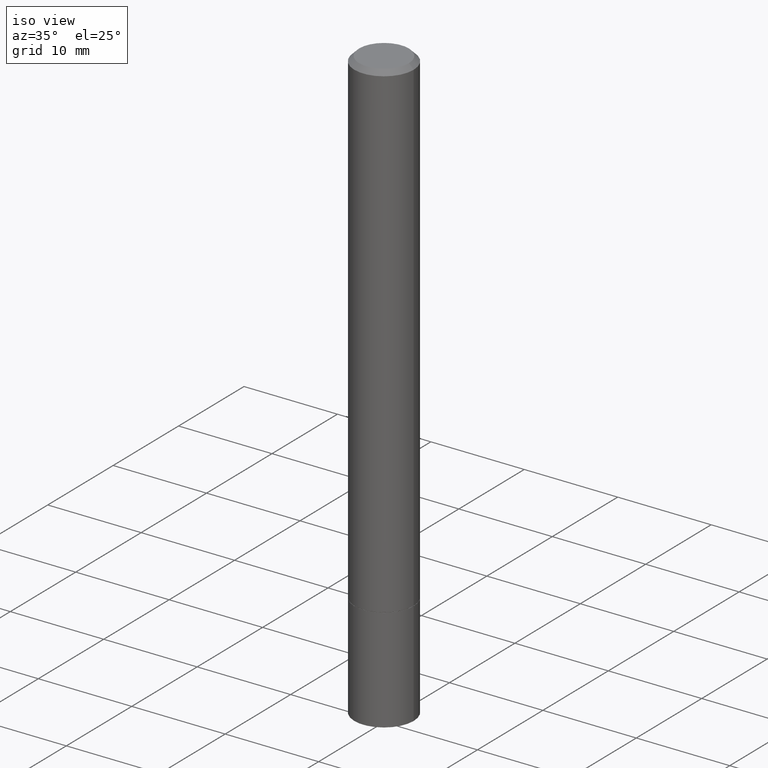
[diagram: clean part render]
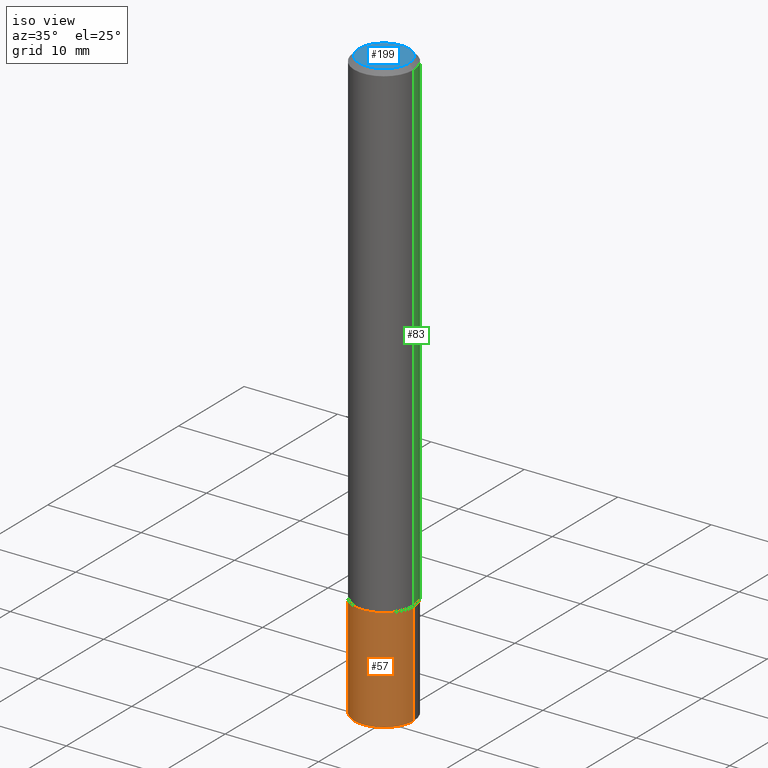
[diagram: same view with three faces highlighted in distinct colors, each labeled with its STEP entity id]
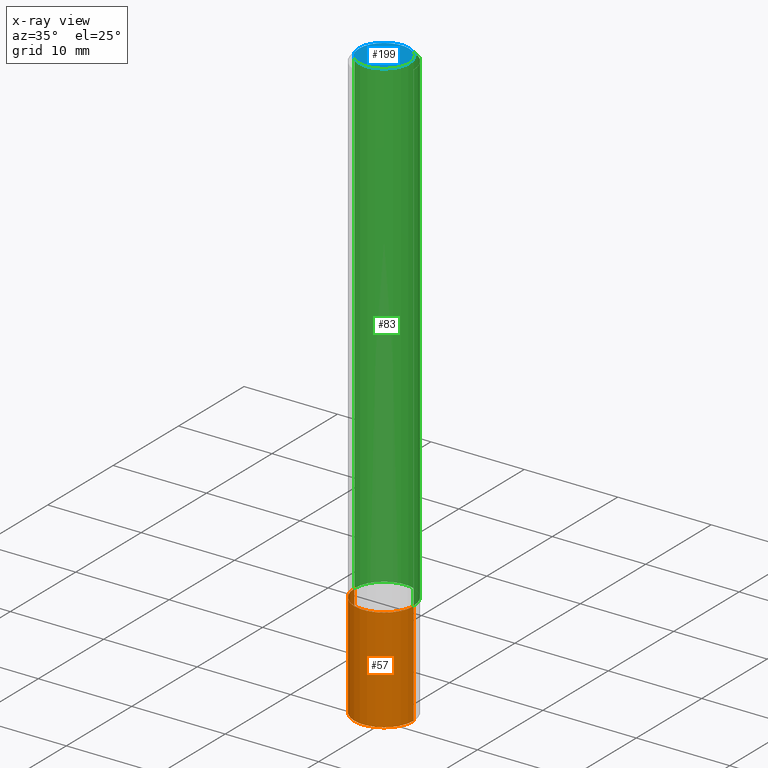
[diagram: x-ray of the same camera — body ghosted, the three highlighted faces saturated]
A machine part, iso view with three faces highlighted in distinct colors.
The next image is the same camera in x-ray (body ghosted, the three faces saturated) — at least one of them is partly hidden behind the body in this view.
Their STEP definitions:

[orange] entity #57 — the highlighted cylindrical surface (edge-blend (fillet) strip) has radius 3.175 mm, axis along (-0, 0, 1).
#3 = DIRECTION ( 'NONE',  ( -2.445468806185136597E-29, 3.491481338843145583E-15, 1.000000000000000000 ) ) ;
#17 = ORIENTED_EDGE ( 'NONE', *, *, #258, .F. ) ;
#28 = VERTEX_POINT ( 'NONE', #58 ) ;
#40 = DIRECTION ( 'NONE',  ( 1.000000000000000000, -6.982962677686270655E-15, 0.000000000000000000 ) ) ;
#41 = VERTEX_POINT ( 'NONE', #152 ) ;
#57 = ADVANCED_FACE ( 'NONE', ( #62 ), #182, .T. ) ;
#58 = CARTESIAN_POINT ( 'NONE',  ( 0.1250000000000000000, -8.074050596074771916E-15, -2.062500000000000000 ) ) ;
#62 = FACE_OUTER_BOUND ( 'NONE', #79, .T. ) ;
#63 = CIRCLE ( 'NONE', #208, 0.1250000000000000000 ) ;
#66 = VECTOR ( 'NONE', #185, 39.37007874015748143 ) ;
#67 = LINE ( 'NONE', #132, #66 ) ;
#73 = DIRECTION ( 'NONE',  ( -2.445468806185136597E-29, 3.491481338843145583E-15, 1.000000000000000000 ) ) ;
#79 = EDGE_LOOP ( 'NONE', ( #350, #347, #330, #17 ) ) ;
#101 = EDGE_CURVE ( 'NONE', #41, #380, #67, .T. ) ;
#132 = CARTESIAN_POINT ( 'NONE',  ( -0.1250000000000000000, 8.881784197001252323E-16, -6.148668862818632227E-30 ) ) ;
#142 = CARTESIAN_POINT ( 'NONE',  ( -0.1250000000000000000, -7.076763384535801528E-15, -2.062500000000000000 ) ) ;
#152 = CARTESIAN_POINT ( 'NONE',  ( -0.1250000000000006661, -7.855833012397075293E-15, -2.500000000000000000 ) ) ;
#154 = VERTEX_POINT ( 'NONE', #305 ) ;
#161 = AXIS2_PLACEMENT_3D ( 'NONE', #216, #3, #308 ) ;
#168 = CARTESIAN_POINT ( 'NONE',  ( 6.113672015462842613E-29, -8.728703347107864943E-15, -2.500000000000000000 ) ) ;
#171 = CARTESIAN_POINT ( 'NONE',  ( 5.043779412756844791E-29, -7.201180261363988578E-15, -2.062500000000000000 ) ) ;
#182 = CYLINDRICAL_SURFACE ( 'NONE', #161, 0.1250000000000000000 ) ;
#185 = DIRECTION ( 'NONE',  ( -2.445468806185136877E-29, 3.491481338843145188E-15, 1.000000000000000000 ) ) ;
#186 = CARTESIAN_POINT ( 'NONE',  ( 0.1250000000000000000, -8.728703347107833388E-16, 6.095220969744919741E-30 ) ) ;
#188 = AXIS2_PLACEMENT_3D ( 'NONE', #171, #225, #40 ) ;
#208 = AXIS2_PLACEMENT_3D ( 'NONE', #168, #73, #259 ) ;
#209 = EDGE_CURVE ( 'NONE', #154, #28, #218, .T. ) ;
#216 = CARTESIAN_POINT ( 'NONE',  ( 0.000000000000000000, 0.000000000000000000, 0.000000000000000000 ) ) ;
#218 = LINE ( 'NONE', #186, #375 ) ;
#224 = CIRCLE ( 'NONE', #188, 0.1250000000000000000 ) ;
#225 = DIRECTION ( 'NONE',  ( -2.445468806185136597E-29, 3.491481338843145583E-15, 1.000000000000000000 ) ) ;
#251 = EDGE_CURVE ( 'NONE', #41, #154, #63, .T. ) ;
#258 = EDGE_CURVE ( 'NONE', #380, #28, #224, .T. ) ;
#259 = DIRECTION ( 'NONE',  ( 1.000000000000000000, -6.982962677686270655E-15, 0.000000000000000000 ) ) ;
#305 = CARTESIAN_POINT ( 'NONE',  ( 0.1250000000000006661, -9.586265596829311121E-15, -2.500000000000000000 ) ) ;
#308 = DIRECTION ( 'NONE',  ( 1.000000000000000000, -6.982962677686266711E-15, 4.876176775795935793E-29 ) ) ;
#330 = ORIENTED_EDGE ( 'NONE', *, *, #209, .T. ) ;
#347 = ORIENTED_EDGE ( 'NONE', *, *, #251, .T. ) ;
#350 = ORIENTED_EDGE ( 'NONE', *, *, #101, .F. ) ;
#367 = DIRECTION ( 'NONE',  ( -2.445468806185136877E-29, 3.491481338843145188E-15, 1.000000000000000000 ) ) ;
#375 = VECTOR ( 'NONE', #367, 39.37007874015748143 ) ;
#380 = VERTEX_POINT ( 'NONE', #142 ) ;

[blue] entity #199 — the highlighted planar face has unit normal (0, -0, -1).
#23 = EDGE_LOOP ( 'NONE', ( #193, #123 ) ) ;
#69 = AXIS2_PLACEMENT_3D ( 'NONE', #113, #196, #310 ) ;
#76 = CARTESIAN_POINT ( 'NONE',  ( -0.1049999999999997741, 7.681258945454874055E-16, -5.249639473182155366E-30 ) ) ;
#94 = VERTEX_POINT ( 'NONE', #335 ) ;
#95 = CARTESIAN_POINT ( 'NONE',  ( 0.000000000000000000, 0.000000000000000000, 0.000000000000000000 ) ) ;
#99 = DIRECTION ( 'NONE',  ( -1.000000000000000000, 6.982962677686265922E-15, -4.876176775795935793E-29 ) ) ;
#104 = DIRECTION ( 'NONE',  ( -2.445468806185136597E-29, 3.491481338843145583E-15, 1.000000000000000000 ) ) ;
#113 = CARTESIAN_POINT ( 'NONE',  ( 0.000000000000000000, 0.000000000000000000, 0.000000000000000000 ) ) ;
#115 = EDGE_CURVE ( 'NONE', #321, #94, #334, .T. ) ;
#123 = ORIENTED_EDGE ( 'NONE', *, *, #289, .T. ) ;
#137 = PLANE ( 'NONE',  #293 ) ;
#155 = CIRCLE ( 'NONE', #69, 0.1049999999999997741 ) ;
#193 = ORIENTED_EDGE ( 'NONE', *, *, #115, .T. ) ;
#196 = DIRECTION ( 'NONE',  ( -2.445468806185136597E-29, 3.491481338843145583E-15, 1.000000000000000000 ) ) ;
#199 = ADVANCED_FACE ( 'NONE', ( #309 ), #137, .F. ) ;
#230 = AXIS2_PLACEMENT_3D ( 'NONE', #95, #104, #277 ) ;
#277 = DIRECTION ( 'NONE',  ( 1.000000000000000000, -6.982962677686265922E-15, 4.876176775795935232E-29 ) ) ;
#289 = EDGE_CURVE ( 'NONE', #94, #321, #155, .T. ) ;
#293 = AXIS2_PLACEMENT_3D ( 'NONE', #365, #362, #99 ) ;
#309 = FACE_OUTER_BOUND ( 'NONE', #23, .T. ) ;
#310 = DIRECTION ( 'NONE',  ( 1.000000000000000000, -6.982962677686265922E-15, 4.876176775795935232E-29 ) ) ;
#321 = VERTEX_POINT ( 'NONE', #76 ) ;
#334 = CIRCLE ( 'NONE', #230, 0.1049999999999997741 ) ;
#335 = CARTESIAN_POINT ( 'NONE',  ( 0.1049999999999997741, -8.238720831321559881E-16, 5.444276250344138855E-30 ) ) ;
#362 = DIRECTION ( 'NONE',  ( 2.438088387897960049E-29, -3.491481338843145188E-15, -1.000000000000000000 ) ) ;
#365 = CARTESIAN_POINT ( 'NONE',  ( 7.332110811570563480E-16, 0.1049999999999997741, -3.666055405785295052E-16 ) ) ;

[green] entity #83 — the highlighted cylindrical surface (edge-blend (fillet) strip) has radius 3.175 mm, axis along (-0, 0, 1).
#7 = CARTESIAN_POINT ( 'NONE',  ( 0.000000000000000000, 0.000000000000000000, 0.000000000000000000 ) ) ;
#10 = EDGE_CURVE ( 'NONE', #49, #267, #332, .T. ) ;
#13 = DIRECTION ( 'NONE',  ( -2.445468806185136597E-29, 3.491481338843145583E-15, 1.000000000000000000 ) ) ;
#19 = DIRECTION ( 'NONE',  ( -2.445468806185136597E-29, 3.491481338843145583E-15, 1.000000000000000000 ) ) ;
#29 = AXIS2_PLACEMENT_3D ( 'NONE', #223, #13, #111 ) ;
#37 = LINE ( 'NONE', #164, #47 ) ;
#46 = VERTEX_POINT ( 'NONE', #129 ) ;
#47 = VECTOR ( 'NONE', #214, 39.37007874015748143 ) ;
#49 = VERTEX_POINT ( 'NONE', #213 ) ;
#71 = EDGE_CURVE ( 'NONE', #267, #46, #37, .T. ) ;
#83 = ADVANCED_FACE ( 'NONE', ( #191 ), #278, .T. ) ;
#89 = AXIS2_PLACEMENT_3D ( 'NONE', #7, #336, #273 ) ;
#92 = CARTESIAN_POINT ( 'NONE',  ( 5.041333943950659188E-29, -7.197688780025145571E-15, -2.061500000000000110 ) ) ;
#100 = DIRECTION ( 'NONE',  ( -2.445468806185136877E-29, 3.491481338843145188E-15, 1.000000000000000000 ) ) ;
#111 = DIRECTION ( 'NONE',  ( 1.000000000000000000, -6.982962677686267499E-15, 0.000000000000000000 ) ) ;
#129 = CARTESIAN_POINT ( 'NONE',  ( -0.1249999999999997363, 8.030407079339185615E-16, -0.02000000000000003164 ) ) ;
#136 = CIRCLE ( 'NONE', #29, 0.1249999999999997363 ) ;
#164 = CARTESIAN_POINT ( 'NONE',  ( -0.1249999999999998612, 8.881784197001242463E-16, -6.148668862818625221E-30 ) ) ;
#191 = FACE_OUTER_BOUND ( 'NONE', #206, .T. ) ;
#198 = CARTESIAN_POINT ( 'NONE',  ( -0.1250000000000000000, -2.745580783700874863E-15, -2.061500000000000110 ) ) ;
#206 = EDGE_LOOP ( 'NONE', ( #240, #352, #229, #384 ) ) ;
#213 = CARTESIAN_POINT ( 'NONE',  ( 0.1250000000000000000, -8.070559114735927332E-15, -2.061500000000000110 ) ) ;
#214 = DIRECTION ( 'NONE',  ( -2.445468806185136877E-29, 3.491481338843145188E-15, 1.000000000000000000 ) ) ;
#221 = EDGE_CURVE ( 'NONE', #49, #328, #303, .T. ) ;
#223 = CARTESIAN_POINT ( 'NONE',  ( 4.890937612370280165E-31, -6.982962677686301470E-17, -0.02000000000000003164 ) ) ;
#229 = ORIENTED_EDGE ( 'NONE', *, *, #331, .F. ) ;
#240 = ORIENTED_EDGE ( 'NONE', *, *, #10, .T. ) ;
#247 = CARTESIAN_POINT ( 'NONE',  ( 0.1249999999999998612, -8.728703347107823527E-16, 6.095220969744912735E-30 ) ) ;
#267 = VERTEX_POINT ( 'NONE', #198 ) ;
#273 = DIRECTION ( 'NONE',  ( 1.000000000000000000, -6.982962677686266711E-15, 4.876176775795935793E-29 ) ) ;
#278 = CYLINDRICAL_SURFACE ( 'NONE', #89, 0.1249999999999998612 ) ;
#282 = AXIS2_PLACEMENT_3D ( 'NONE', #92, #19, #355 ) ;
#287 = CARTESIAN_POINT ( 'NONE',  ( 0.1249999999999997363, -9.273918764983025741E-16, -0.02000000000000003164 ) ) ;
#303 = LINE ( 'NONE', #247, #363 ) ;
#328 = VERTEX_POINT ( 'NONE', #287 ) ;
#331 = EDGE_CURVE ( 'NONE', #328, #46, #136, .T. ) ;
#332 = CIRCLE ( 'NONE', #282, 0.1250000000000000000 ) ;
#336 = DIRECTION ( 'NONE',  ( -2.445468806185136597E-29, 3.491481338843145583E-15, 1.000000000000000000 ) ) ;
#352 = ORIENTED_EDGE ( 'NONE', *, *, #71, .T. ) ;
#355 = DIRECTION ( 'NONE',  ( 1.000000000000000000, -6.982962677686262766E-15, 0.000000000000000000 ) ) ;
#363 = VECTOR ( 'NONE', #100, 39.37007874015748143 ) ;
#384 = ORIENTED_EDGE ( 'NONE', *, *, #221, .F. ) ;